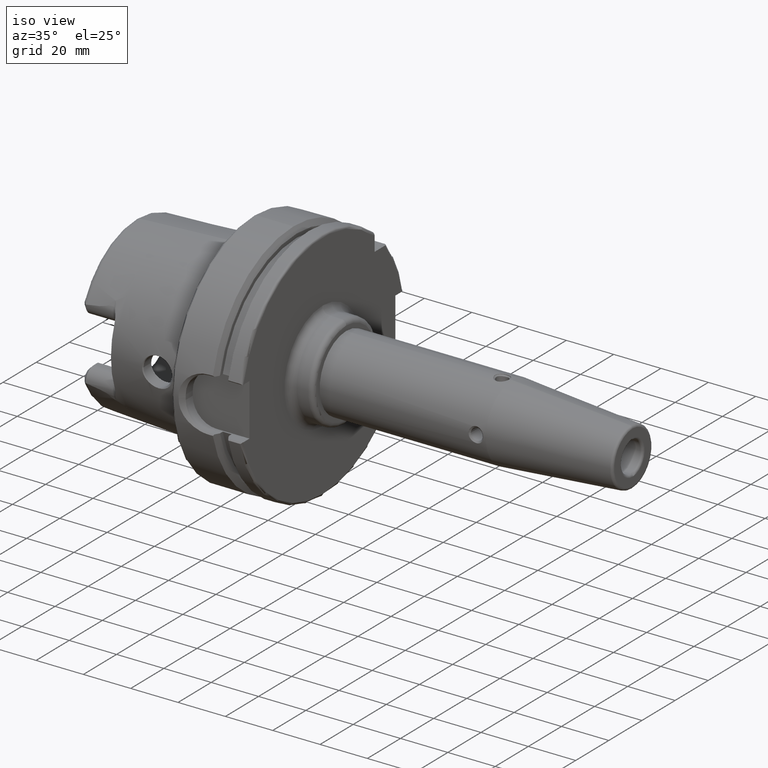
[diagram: clean part render]
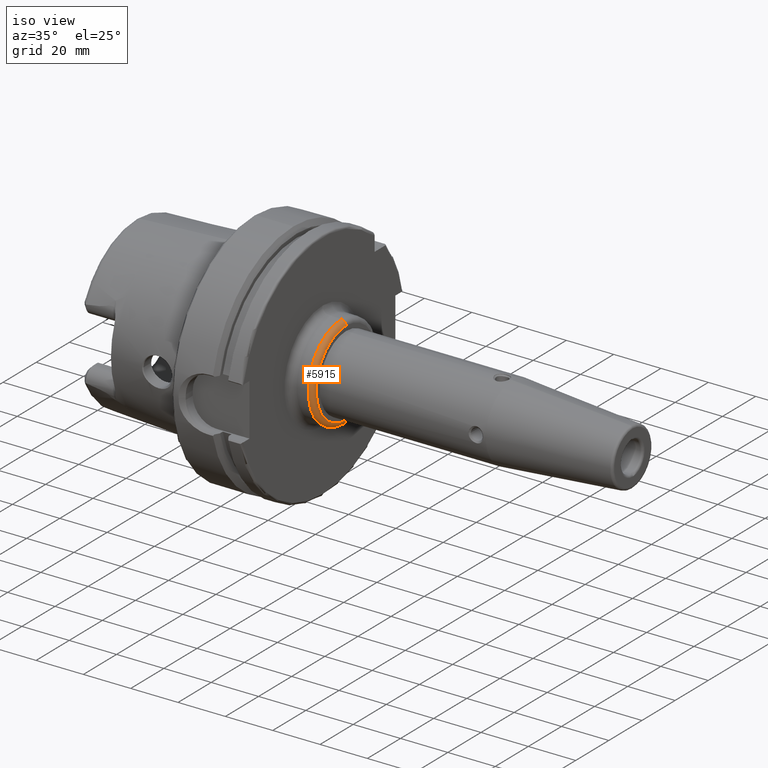
[diagram: same view with one face highlighted and labeled with its STEP entity id]
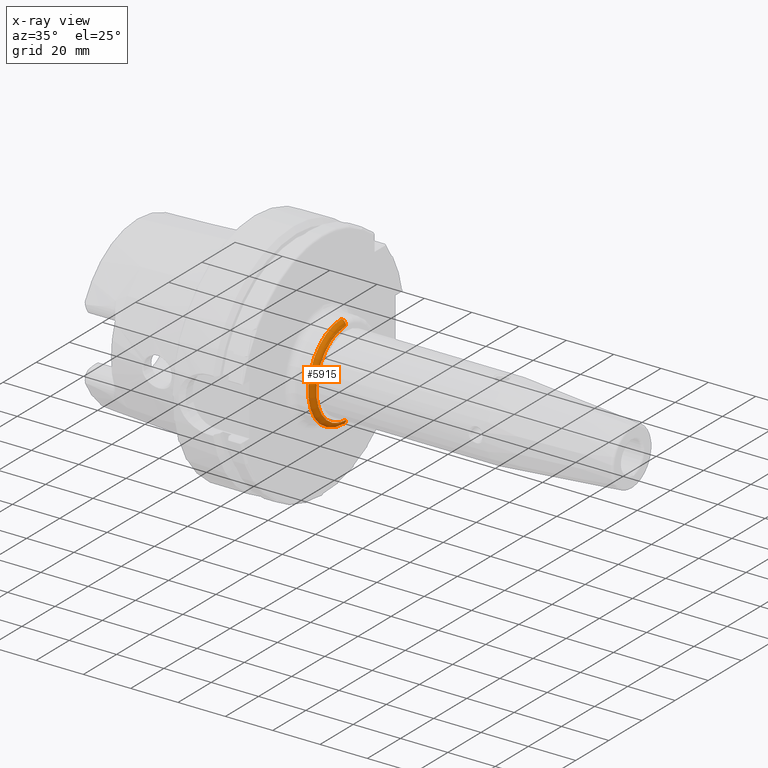
[diagram: x-ray of the same camera — body ghosted, the highlighted face saturated]
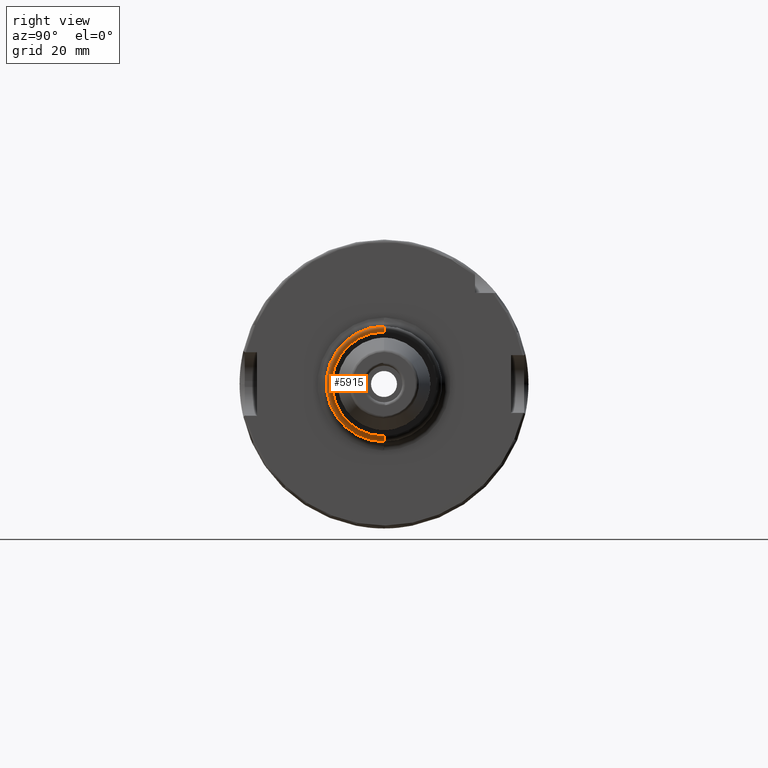
[diagram: same view with one face highlighted and labeled with its STEP entity id]
A machine part, iso view. The second image highlights one B-rep face of the part: STEP entity #5915.
The next image is the same camera in x-ray: the body ghosted, the highlighted face saturated — about 0% of this face is hidden behind the body in this view.
A second angle (right view) of the same face is appended — the face is thin or edge-on in the first view.
In plain terms, the highlighted toroidal blend (fillet) surface has major radius 18 mm and minor (blend) radius 2 mm.
Its self-contained STEP definition (entity closure, byte-faithful):
#2215=CARTESIAN_POINT('',(3.7E1,-1.519129044780E-9,1.8E1));
#2216=DIRECTION('',(0.E0,-1.E0,-8.439605611588E-11));
#2217=DIRECTION('',(1.E0,0.E0,0.E0));
#2218=AXIS2_PLACEMENT_3D('',#2215,#2216,#2217);
#2220=CARTESIAN_POINT('',(3.7E1,0.E0,0.E0));
#2221=DIRECTION('',(-1.E0,0.E0,0.E0));
#2222=DIRECTION('',(0.E0,5.542110874249E-12,-1.E0));
#2223=AXIS2_PLACEMENT_3D('',#2220,#2221,#2222);
#2225=CARTESIAN_POINT('',(3.9E1,0.E0,0.E0));
#2226=DIRECTION('',(1.E0,0.E0,0.E0));
#2227=DIRECTION('',(0.E0,0.E0,1.E0));
#2228=AXIS2_PLACEMENT_3D('',#2225,#2226,#2227);
#2230=CARTESIAN_POINT('',(3.7E1,1.519129044780E-9,-1.8E1));
#2231=DIRECTION('',(0.E0,1.E0,8.439605611588E-11));
#2232=DIRECTION('',(1.E0,0.E0,0.E0));
#2233=AXIS2_PLACEMENT_3D('',#2230,#2231,#2232);
#2239=CARTESIAN_POINT('',(3.9E1,0.E0,0.E0));
#2240=DIRECTION('',(-1.E0,0.E0,0.E0));
#2241=DIRECTION('',(0.E0,0.E0,-1.E0));
#2242=AXIS2_PLACEMENT_3D('',#2239,#2240,#2241);
#3412=CARTESIAN_POINT('',(3.7E1,0.E0,2.E1));
#3413=CARTESIAN_POINT('',(3.7E1,1.108422174850E-10,-2.E1));
#3414=VERTEX_POINT('',#3412);
#3415=VERTEX_POINT('',#3413);
#3416=CARTESIAN_POINT('',(3.9E1,1.519129044780E-9,-1.8E1));
#3417=VERTEX_POINT('',#3416);
#3418=CARTESIAN_POINT('',(3.9E1,-3.400101778905E-14,1.8E1));
#3420=VERTEX_POINT('',#3418);
#3422=CARTESIAN_POINT('',(3.9E1,-3.376582669089E-1,1.799683269064E1));
#3423=VERTEX_POINT('',#3422);
#5900=CARTESIAN_POINT('',(3.7E1,0.E0,0.E0));
#5901=DIRECTION('',(1.E0,0.E0,0.E0));
#5902=DIRECTION('',(0.E0,1.875879260605E-2,-9.998240383687E-1));
#5903=AXIS2_PLACEMENT_3D('',#5900,#5901,#5902);
#5904=TOROIDAL_SURFACE('',#5903,1.8E1,2.E0);
#5906=ORIENTED_EDGE('',*,*,#5905,.T.);
#5907=ORIENTED_EDGE('',*,*,#5895,.F.);
#5909=ORIENTED_EDGE('',*,*,#5908,.T.);
#5911=ORIENTED_EDGE('',*,*,#5910,.F.);
#5912=ORIENTED_EDGE('',*,*,#5889,.T.);
#5913=EDGE_LOOP('',(#5906,#5907,#5909,#5911,#5912));
#5914=FACE_OUTER_BOUND('',#5913,.F.);
#5915=ADVANCED_FACE('',(#5914),#5904,.T.);
#2219=CIRCLE('',#2218,2.E0);
#2224=CIRCLE('',#2223,2.E1);
#2229=CIRCLE('',#2228,1.8E1);
#2234=CIRCLE('',#2233,2.E0);
#2243=CIRCLE('',#2242,1.8E1);
#5889=EDGE_CURVE('',#3417,#3415,#2234,.T.);
#5895=EDGE_CURVE('',#3420,#3414,#2219,.T.);
#5905=EDGE_CURVE('',#3415,#3414,#2224,.T.);
#5908=EDGE_CURVE('',#3420,#3423,#2229,.T.);
#5910=EDGE_CURVE('',#3417,#3423,#2243,.T.);